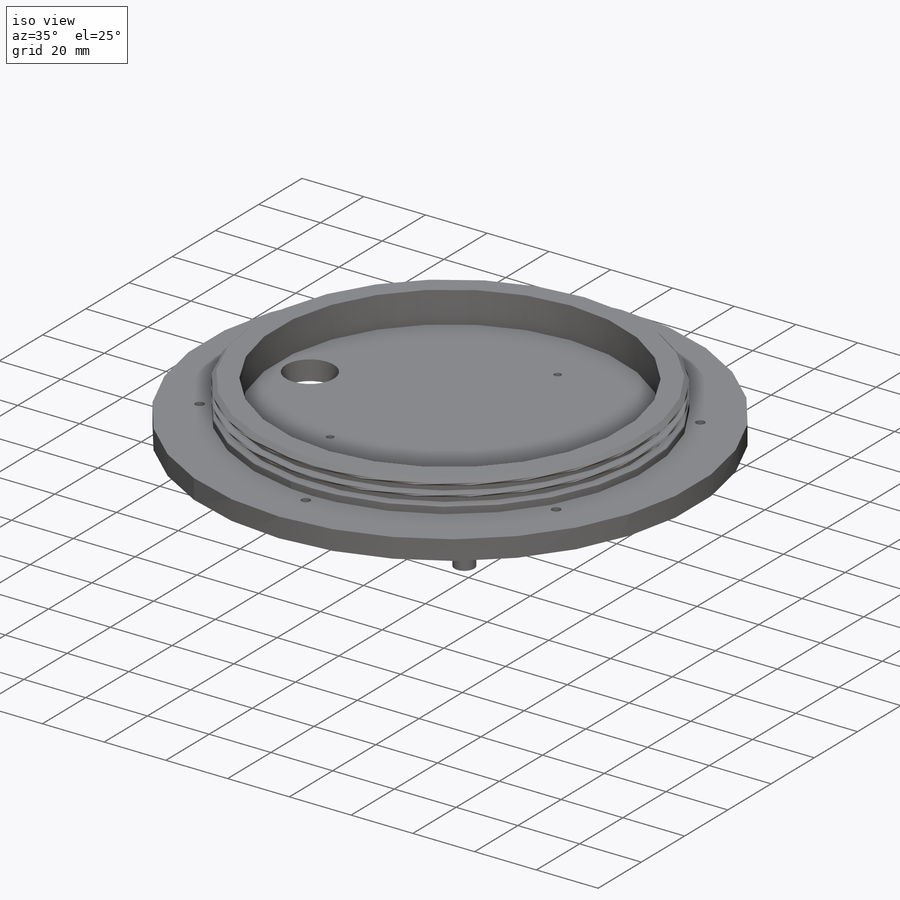
[diagram: iso view]
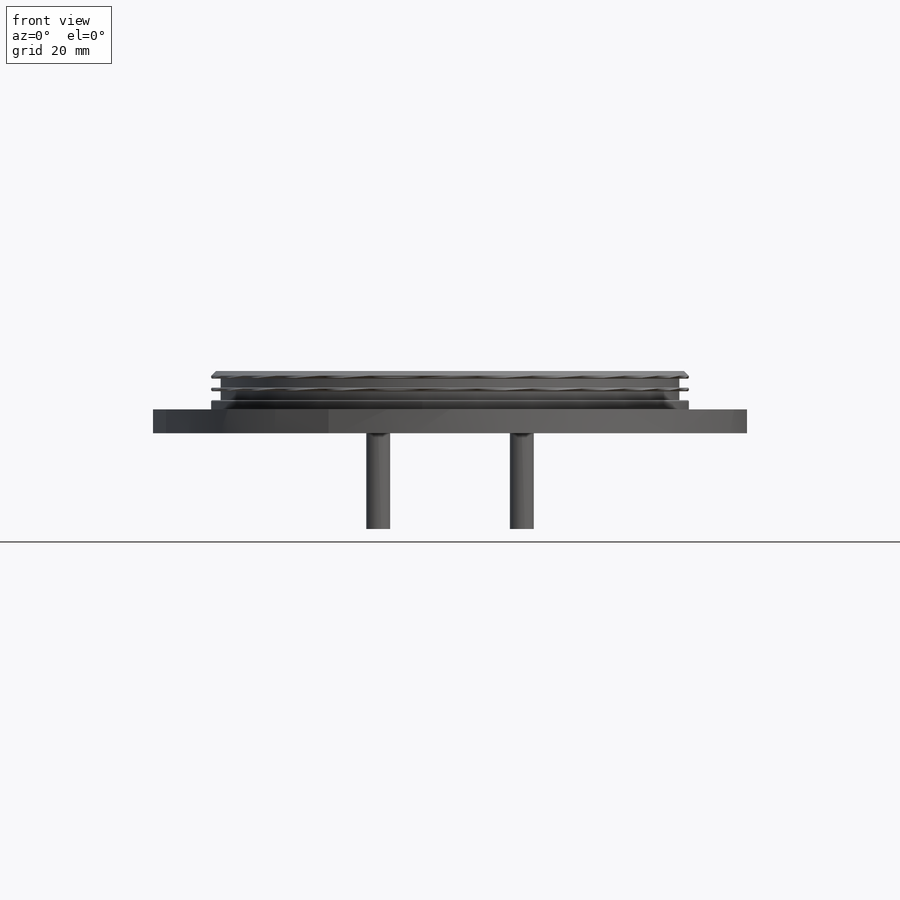
[diagram: front view]
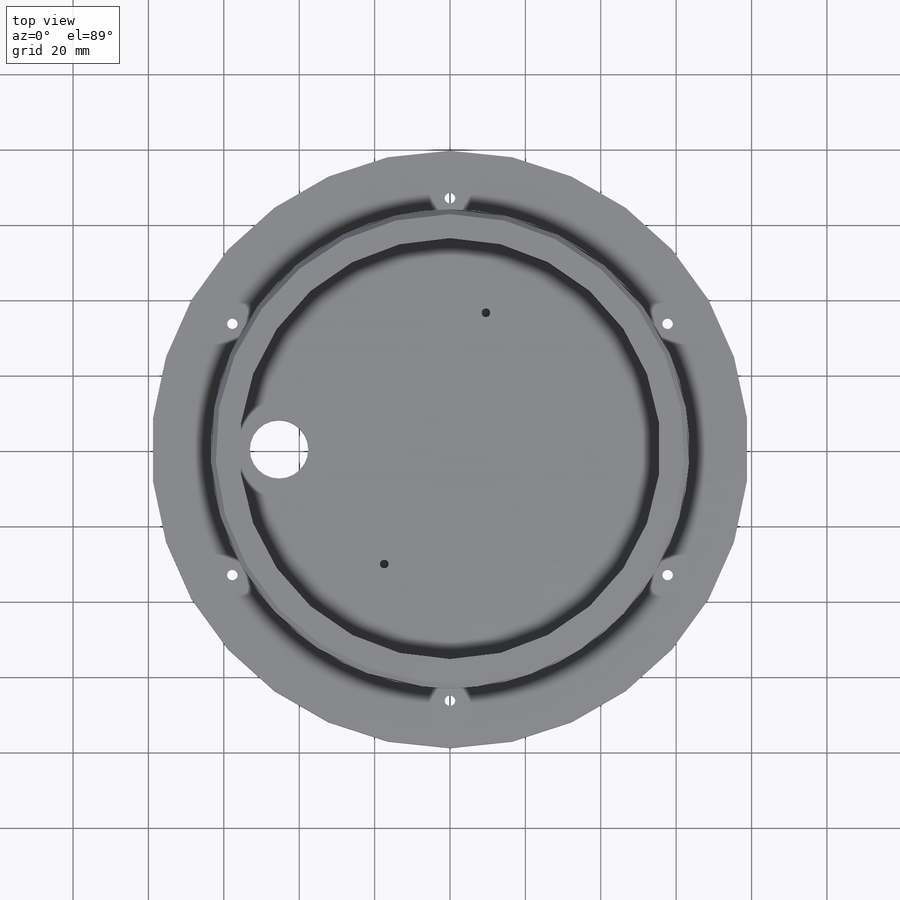
[diagram: top view]
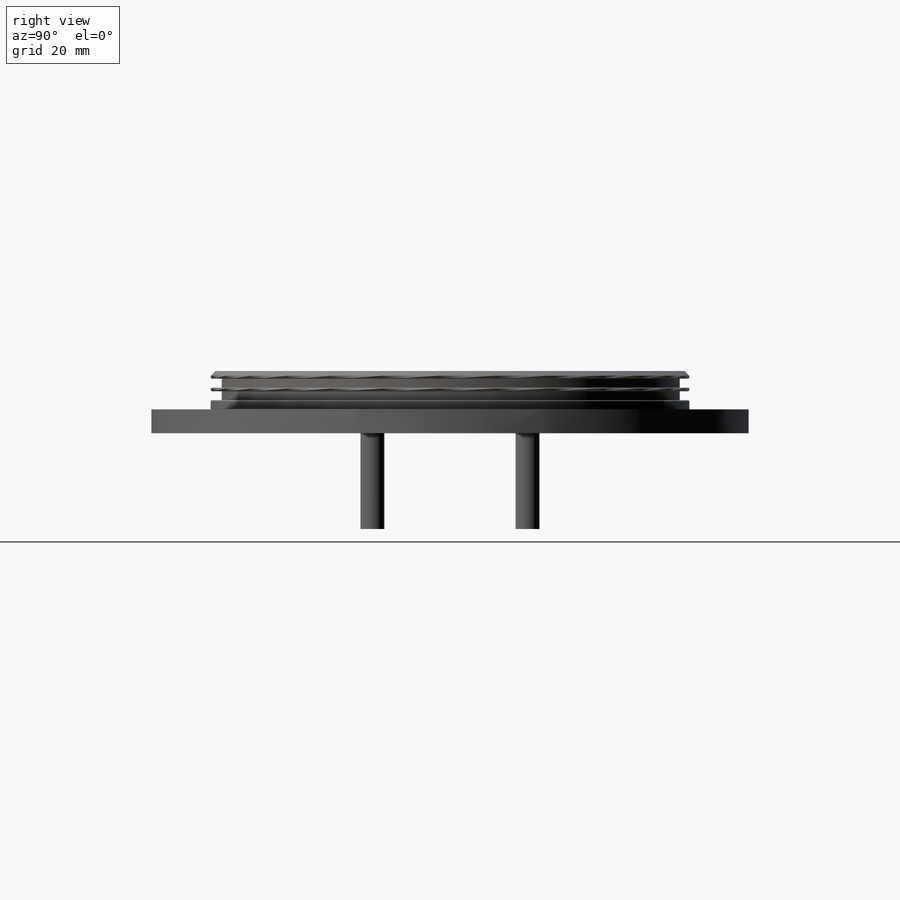
[diagram: right view]
SOLIDWORKS PART (.sldprt)
format: sldprt  version: not decoded by parser v0  size: 922,624 bytes
history: native  units: mm
features: sketch x14, thread x6, cut_revolve x5, hole x4, extrude x3, chamfer x2, material x1, cut_extrude x1, pattern_circular x1 (+11 scaffold rows collapsed)
feature tree (48):
  scaffold x11  (default folders/planes/origin — collapsed)
  material  "6061 Alloy"
  sketch  "Sketch1"  dims[D1=158.496mm]
  extrude  "Extrude1"  Depth=3.175mm
  sketch  "Sketch2"  dims[D1=31.75mm]
  extrude  "Extrude2"  Depth=10.16mm
  sketch  "Sketch4"  dims[c1.D1=2.3622mm c1.D2=2.3622mm c1.D3=1.5875mm c1.D4=1.5875mm c2.D3=60.96mm]
  cut_revolve  "Cut-Revolve7"  Angle=360deg
  sketch  "Sketch5"  dims[D1=59.69mm]
  cut_extrude  "Cut-Extrude1"  Depth=10.16mm
  chamfer  "Chamfer1"  Distance=1.27mm Angle=45deg
  sketch  "Sketch8"
  chamfer  "Chamfer2"  Distance=0.254mm Angle=45deg
  hole  "CBORE for #3 Socket Head Cap Screw1"  Diameter=2.794mm Depth=16.51mm
  sketch  "3DSketch7"  dims[c1.D1=~57.449036mm c1.D2=~64.999899mm c1.D3=~65.684376mm c1.D4=~64.817219mm c1.D5=~65.495862mm c1.D6=~64.890203mm c1.D7=~77.468402mm c1.D8=66.675mm c2.D8=~91.362902mm c2.D9=66.675mm c3.D9=~75.910401mm c3.D11=66.675mm c3.D10=~62.453033mm c3.D2=66.675mm c4.D11=~55.544786mm c4.D12=66.675mm c5.D12=~66.220742mm c5.D13=~66.220742mm c5.D1=66.675mm c5.D2=66.675mm c6.D1=66.675mm]
  sketch  "Sketch16"  dims[hole-wizard template sketch: 41 standard entries collapsed; hole parameters kept: c12.Thru Hole Dia.=2.794mm c12.Thru Hole Depth=16.51mm c12.C'Bore Dia.=~5.15874mm c12.C'Bore Depth=2.5146mm]
  pattern_circular  "CirPattern1"  Count=6 Angle=360deg
  cut_revolve  "Point3"  [1 undecoded]
  cut_revolve  "Point4"  [1 undecoded]
  cut_revolve  "Point5"  [1 undecoded]
  cut_revolve  "Point6"  [1 undecoded]
  hole  "#4-40 Tapped Hole1"  Diameter=2.2606mm Depth=5.08mm
  sketch  "3DSketch11"  dims[c1.D1=~50.908495mm c1.D3=69.85mm c1.D2=~61.653434mm c1.D9=97.79mm c2.D3=~65.641839mm c2.D4=~26.497611mm c2.D9=34.925mm c2.D5=~15.172208mm c3.D4=12.7mm c3.D6=~50.31645mm c4.D4=44.45mm c4.D7=~9.648853mm c4.D1=18.415mm c4.D8=~115.962344mm c5.D4=17.4625mm c5.D9=133.35mm c5.D3=~35.217647mm c6.D4=48.895mm c6.D2=48.895mm c6.D1=48.895mm c7.D4=97.79mm c7.D9=97.79mm c8.D4=2.54mm c8.D1=69.85mm c8.D2=97.79mm c8.D3=97.79mm c9.D3=~0.493907deg c10.D3=97.79mm c11.D3=~0.493907deg c11.D4=~0.493907deg c12.D3=97.79mm c13.D3=~0.493907deg c13.D4=0.0deg c14.D3=12.7mm c14.D4=44.45mm c14.D5=18.415mm c14.D6=17.4625mm]
  sketch  "Sketch20"  dims[hole-wizard template sketch: 47 standard entries collapsed; hole parameters kept: c15.Tap Drill Depth=5.08mm c15.D3=~14.816244mm c15.Drill Angle=118.0deg]
  thread  "Hole Thread1"  Diameter=4.445mm  [1 undecoded]
  thread  "Hole Thread2"  Diameter=4.445mm  [1 undecoded]
  thread  "Hole Thread3"  Diameter=4.445mm  [1 undecoded]
  thread  "Hole Thread4"  Diameter=4.445mm  [1 undecoded]
  thread  "Hole Thread5"  Diameter=4.445mm  [1 undecoded]
  thread  "Hole Thread6"  Diameter=4.445mm  [1 undecoded]
  hole  "M14 Clearance Hole1"  Diameter=15.5mm Depth=330.2mm
  sketch  "3DSketch8"  dims[c1.D1=~23.70359mm c1.D2=31.75mm c2.D2=~24.640976mm c2.D3=31.75mm c2.D1=~43.179428mm c3.D2=43.18mm c4.D2=~43.179604mm c4.D3=43.18mm c4.D1=~47.40873mm c5.D2=~72.397316mm c5.D3=~72.397316mm c5.D1=35.56mm c6.D2=35.56mm]
  sketch  "Sketch17"  dims[hole-wizard template sketch: 46 standard entries collapsed; hole parameters kept: c15.Hole Dia.=15.5mm c15.Hole Depth=330.2mm c15.D3=~14.816244mm c15.Drill Angle=118.0deg]
  hole  "#6-32 Tapped Hole1"  Diameter=2.7051mm Depth=4.318mm
  sketch  "3DSketch9"  dims[c1.D1=~39.726532mm c1.D2=41.148mm c2.D2=~37.509733mm c2.D8=41.148mm c2.D3=~35.408828mm c3.D2=38.1mm c3.D4=~31.325097mm c3.D1=~28.039116mm c3.D5=~27.767951mm c4.D2=~28.039116mm c4.D6=~24.856102mm c4.D1=~28.039116mm c4.D7=~42.283577mm c5.D2=38.1mm c5.D8=~33.572699mm c5.D9=~33.572699mm c6.D9=~32.350949mm c6.D10=~32.350949mm c6.D1=38.1mm c6.D2=41.148mm c6.D3=41.148mm]
  sketch  "Sketch18"  dims[hole-wizard template sketch: 29 standard entries collapsed; hole parameters kept: c8.Tap Drill Depth=4.318mm c8.Thread Major Dia.=3.5052mm c8.Thread Depth=3.556mm c8.D5=~14.816244mm c8.Drill Angle=118.0deg]
  sketch  "Sketch21"  dims[D1=6.35mm D2=6.35mm D3=6.35mm D4=6.35mm]
  extrude  "Boss-Extrude1"  Depth=25.4mm
decode coverage: 31 of 36 modeling features carry decoded parameters
note: ~ marks probable driven/reference dimensions
note: 10 parameter values undecoded
summary: no parameter record found for 4 features; Diameter pulled from absorbed wizard sketch
note: suppression state not decoded; provenance and decode notes live in map.json
